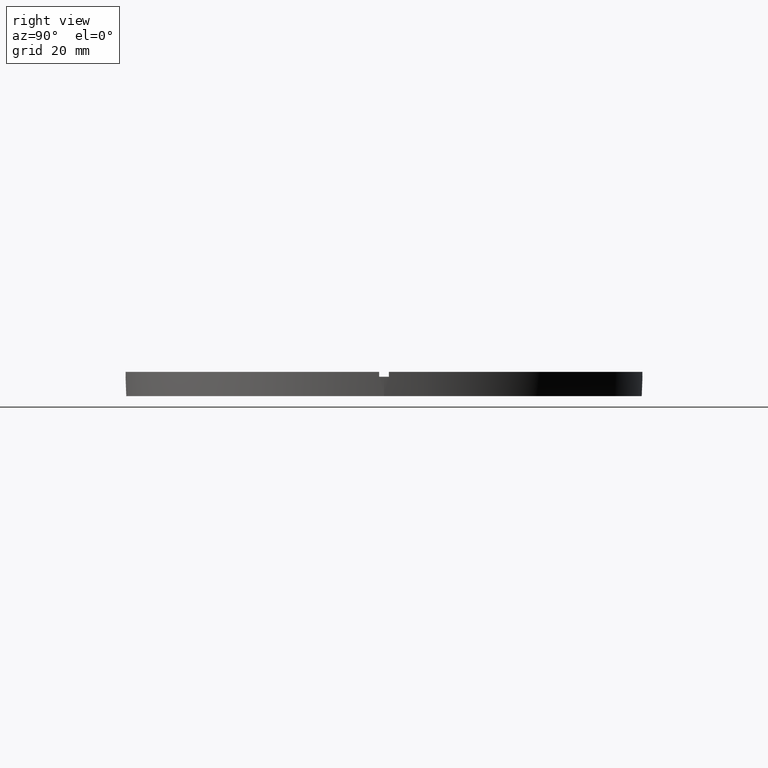
[diagram: clean part render]
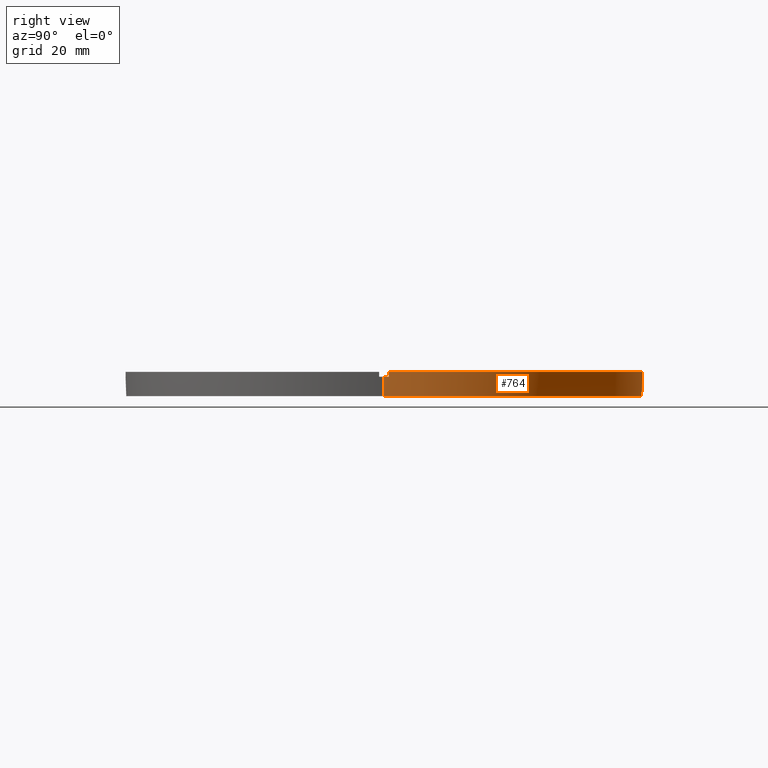
[diagram: same view with one face highlighted and labeled with its STEP entity id]
A machine part, right view. The second image highlights one B-rep face of the part: STEP entity #764.
In plain terms, the highlighted cylindrical surface (partial cylindrical patch) has radius 53.5 mm, axis along (-0, -0, -1).
Its self-contained STEP definition (entity closure, byte-faithful):
#5 = CARTESIAN_POINT ( 'NONE',  ( 0.000000000000000000, 0.000000000000000000, 5.000000000000000000 ) ) ;
#15 = CARTESIAN_POINT ( 'NONE',  ( -1.000000000000027311, 53.49065338916696533, 4.000000000000000000 ) ) ;
#30 = AXIS2_PLACEMENT_3D ( 'NONE', #5, #204, #210 ) ;
#46 = CARTESIAN_POINT ( 'NONE',  ( -53.49065338916696533, 0.9999999999999674705, 4.000000000000000000 ) ) ;
#72 = LINE ( 'NONE', #639, #607 ) ;
#75 = CARTESIAN_POINT ( 'NONE',  ( -53.50000000000000000, 0.000000000000000000, 5.000000000000000000 ) ) ;
#83 = CIRCLE ( 'NONE', #368, 53.50000000000000000 ) ;
#92 = AXIS2_PLACEMENT_3D ( 'NONE', #577, #645, #739 ) ;
#123 = FACE_OUTER_BOUND ( 'NONE', #772, .T. ) ;
#125 = CIRCLE ( 'NONE', #545, 53.50000000000000000 ) ;
#127 = VECTOR ( 'NONE', #742, 1000.000000000000000 ) ;
#145 = CARTESIAN_POINT ( 'NONE',  ( -1.000000000000027311, 53.49065338916696533, 5.000000000000000000 ) ) ;
#155 = DIRECTION ( 'NONE',  ( 0.000000000000000000, 0.000000000000000000, 1.000000000000000000 ) ) ;
#158 = DIRECTION ( 'NONE',  ( 1.000000000000000000, 0.000000000000000000, 0.000000000000000000 ) ) ;
#172 = VERTEX_POINT ( 'NONE', #367 ) ;
#180 = VERTEX_POINT ( 'NONE', #218 ) ;
#198 = EDGE_CURVE ( 'NONE', #500, #172, #340, .T. ) ;
#199 = DIRECTION ( 'NONE',  ( 0.000000000000000000, 0.000000000000000000, 1.000000000000000000 ) ) ;
#204 = DIRECTION ( 'NONE',  ( 0.000000000000000000, 0.000000000000000000, 1.000000000000000000 ) ) ;
#210 = DIRECTION ( 'NONE',  ( 1.000000000000000000, 0.000000000000000000, 0.000000000000000000 ) ) ;
#213 = CARTESIAN_POINT ( 'NONE',  ( -53.50000000000000000, 0.000000000000000000, 4.000000000000000000 ) ) ;
#217 = DIRECTION ( 'NONE',  ( 1.000000000000000000, 0.000000000000000000, 0.000000000000000000 ) ) ;
#218 = CARTESIAN_POINT ( 'NONE',  ( 0.9999999999999726885, 53.49065338916696533, 4.000000000000000000 ) ) ;
#221 = CARTESIAN_POINT ( 'NONE',  ( 0.9999999999999726885, 53.49065338916696533, 5.000000000000000000 ) ) ;
#229 = VERTEX_POINT ( 'NONE', #348 ) ;
#236 = VERTEX_POINT ( 'NONE', #284 ) ;
#240 = CARTESIAN_POINT ( 'NONE',  ( 0.9999999999999726885, 53.49065338916696533, 5.000000000000000000 ) ) ;
#241 = DIRECTION ( 'NONE',  ( -0.000000000000000000, -0.000000000000000000, -1.000000000000000000 ) ) ;
#259 = CARTESIAN_POINT ( 'NONE',  ( 53.50000000000000000, 6.551860375438339893E-15, 0.000000000000000000 ) ) ;
#262 = CARTESIAN_POINT ( 'NONE',  ( 0.000000000000000000, 0.000000000000000000, 5.000000000000000000 ) ) ;
#277 = EDGE_CURVE ( 'NONE', #236, #483, #72, .T. ) ;
#283 = DIRECTION ( 'NONE',  ( 1.000000000000000000, 0.000000000000000000, 0.000000000000000000 ) ) ;
#284 = CARTESIAN_POINT ( 'NONE',  ( 53.50000000000000000, 6.551860375438339893E-15, 4.000000000000000000 ) ) ;
#292 = DIRECTION ( 'NONE',  ( -0.000000000000000000, -0.000000000000000000, -1.000000000000000000 ) ) ;
#305 = ORIENTED_EDGE ( 'NONE', *, *, #321, .F. ) ;
#317 = DIRECTION ( 'NONE',  ( 0.000000000000000000, 0.000000000000000000, 1.000000000000000000 ) ) ;
#321 = EDGE_CURVE ( 'NONE', #609, #229, #83, .T. ) ;
#324 = CARTESIAN_POINT ( 'NONE',  ( 0.000000000000000000, 0.000000000000000000, 4.000000000000000000 ) ) ;
#340 = LINE ( 'NONE', #757, #341 ) ;
#341 = VECTOR ( 'NONE', #292, 1000.000000000000000 ) ;
#348 = CARTESIAN_POINT ( 'NONE',  ( -53.49065338916696533, 0.9999999999999674705, 5.000000000000000000 ) ) ;
#354 = ORIENTED_EDGE ( 'NONE', *, *, #631, .T. ) ;
#367 = CARTESIAN_POINT ( 'NONE',  ( 53.49065338916697243, 0.9999999999998454570, 4.000000000000000000 ) ) ;
#368 = AXIS2_PLACEMENT_3D ( 'NONE', #262, #155, #725 ) ;
#373 = CIRCLE ( 'NONE', #493, 53.50000000000000000 ) ;
#377 = DIRECTION ( 'NONE',  ( -0.000000000000000000, -0.000000000000000000, -1.000000000000000000 ) ) ;
#380 = LINE ( 'NONE', #221, #630 ) ;
#393 = LINE ( 'NONE', #776, #127 ) ;
#402 = VECTOR ( 'NONE', #199, 1000.000000000000000 ) ;
#404 = CIRCLE ( 'NONE', #92, 53.50000000000000000 ) ;
#411 = ORIENTED_EDGE ( 'NONE', *, *, #277, .T. ) ;
#417 = CYLINDRICAL_SURFACE ( 'NONE', #777, 53.50000000000000000 ) ;
#424 = ORIENTED_EDGE ( 'NONE', *, *, #436, .F. ) ;
#425 = CIRCLE ( 'NONE', #461, 53.50000000000000000 ) ;
#436 = EDGE_CURVE ( 'NONE', #709, #747, #660, .T. ) ;
#444 = ORIENTED_EDGE ( 'NONE', *, *, #729, .F. ) ;
#446 = ORIENTED_EDGE ( 'NONE', *, *, #533, .F. ) ;
#448 = ORIENTED_EDGE ( 'NONE', *, *, #552, .T. ) ;
#461 = AXIS2_PLACEMENT_3D ( 'NONE', #775, #317, #158 ) ;
#463 = DIRECTION ( 'NONE',  ( 0.000000000000000000, 0.000000000000000000, 1.000000000000000000 ) ) ;
#483 = VERTEX_POINT ( 'NONE', #259 ) ;
#487 = EDGE_CURVE ( 'NONE', #678, #229, #653, .T. ) ;
#493 = AXIS2_PLACEMENT_3D ( 'NONE', #324, #534, #283 ) ;
#499 = ORIENTED_EDGE ( 'NONE', *, *, #502, .F. ) ;
#500 = VERTEX_POINT ( 'NONE', #532 ) ;
#502 = EDGE_CURVE ( 'NONE', #678, #709, #373, .T. ) ;
#518 = DIRECTION ( 'NONE',  ( 0.000000000000000000, -0.000000000000000000, 1.000000000000000000 ) ) ;
#532 = CARTESIAN_POINT ( 'NONE',  ( 53.49065338916697243, 0.9999999999998454570, 5.000000000000000000 ) ) ;
#533 = EDGE_CURVE ( 'NONE', #236, #172, #404, .T. ) ;
#534 = DIRECTION ( 'NONE',  ( 0.000000000000000000, 0.000000000000000000, 1.000000000000000000 ) ) ;
#545 = AXIS2_PLACEMENT_3D ( 'NONE', #695, #518, #217 ) ;
#552 = EDGE_CURVE ( 'NONE', #609, #765, #393, .T. ) ;
#558 = VERTEX_POINT ( 'NONE', #240 ) ;
#577 = CARTESIAN_POINT ( 'NONE',  ( 0.000000000000000000, 0.000000000000000000, 4.000000000000000000 ) ) ;
#593 = CARTESIAN_POINT ( 'NONE',  ( -53.50000000000000000, 0.000000000000000000, 0.000000000000000000 ) ) ;
#601 = CARTESIAN_POINT ( 'NONE',  ( 0.000000000000000000, 0.000000000000000000, 5.000000000000000000 ) ) ;
#607 = VECTOR ( 'NONE', #241, 1000.000000000000000 ) ;
#609 = VERTEX_POINT ( 'NONE', #145 ) ;
#615 = EDGE_CURVE ( 'NONE', #180, #765, #125, .T. ) ;
#630 = VECTOR ( 'NONE', #463, 1000.000000000000000 ) ;
#631 = EDGE_CURVE ( 'NONE', #180, #558, #380, .T. ) ;
#637 = CIRCLE ( 'NONE', #30, 53.50000000000000000 ) ;
#639 = CARTESIAN_POINT ( 'NONE',  ( 53.50000000000000000, 6.551860375438339893E-15, 5.000000000000000000 ) ) ;
#643 = VECTOR ( 'NONE', #377, 1000.000000000000000 ) ;
#645 = DIRECTION ( 'NONE',  ( 0.000000000000000000, 0.000000000000000000, 1.000000000000000000 ) ) ;
#653 = LINE ( 'NONE', #783, #402 ) ;
#660 = LINE ( 'NONE', #75, #643 ) ;
#678 = VERTEX_POINT ( 'NONE', #46 ) ;
#683 = ORIENTED_EDGE ( 'NONE', *, *, #198, .T. ) ;
#686 = DIRECTION ( 'NONE',  ( -0.000000000000000000, -0.000000000000000000, -1.000000000000000000 ) ) ;
#695 = CARTESIAN_POINT ( 'NONE',  ( 0.000000000000000000, 0.000000000000000000, 4.000000000000000000 ) ) ;
#698 = ORIENTED_EDGE ( 'NONE', *, *, #615, .F. ) ;
#707 = ORIENTED_EDGE ( 'NONE', *, *, #487, .T. ) ;
#709 = VERTEX_POINT ( 'NONE', #213 ) ;
#725 = DIRECTION ( 'NONE',  ( 1.000000000000000000, 0.000000000000000000, 0.000000000000000000 ) ) ;
#729 = EDGE_CURVE ( 'NONE', #500, #558, #637, .T. ) ;
#739 = DIRECTION ( 'NONE',  ( 1.000000000000000000, 0.000000000000000000, 0.000000000000000000 ) ) ;
#742 = DIRECTION ( 'NONE',  ( -0.000000000000000000, -0.000000000000000000, -1.000000000000000000 ) ) ;
#747 = VERTEX_POINT ( 'NONE', #593 ) ;
#749 = ORIENTED_EDGE ( 'NONE', *, *, #782, .T. ) ;
#757 = CARTESIAN_POINT ( 'NONE',  ( 53.49065338916697243, 0.9999999999998454570, 5.000000000000000000 ) ) ;
#763 = DIRECTION ( 'NONE',  ( -1.000000000000000000, 0.000000000000000000, 0.000000000000000000 ) ) ;
#764 = ADVANCED_FACE ( 'NONE', ( #123 ), #417, .T. ) ;
#765 = VERTEX_POINT ( 'NONE', #15 ) ;
#772 = EDGE_LOOP ( 'NONE', ( #446, #411, #749, #424, #499, #707, #305, #448, #698, #354, #444, #683 ) ) ;
#775 = CARTESIAN_POINT ( 'NONE',  ( 0.000000000000000000, 0.000000000000000000, 0.000000000000000000 ) ) ;
#776 = CARTESIAN_POINT ( 'NONE',  ( -1.000000000000027311, 53.49065338916696533, 5.000000000000000000 ) ) ;
#777 = AXIS2_PLACEMENT_3D ( 'NONE', #601, #686, #763 ) ;
#782 = EDGE_CURVE ( 'NONE', #483, #747, #425, .T. ) ;
#783 = CARTESIAN_POINT ( 'NONE',  ( -53.49065338916696533, 0.9999999999999674705, 5.000000000000000000 ) ) ;